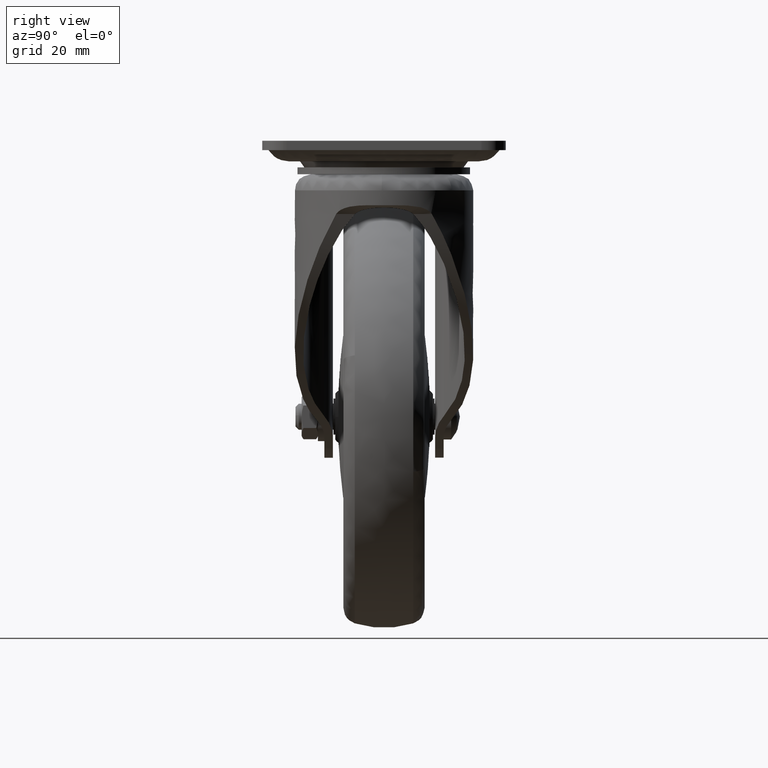
[diagram: clean part render]
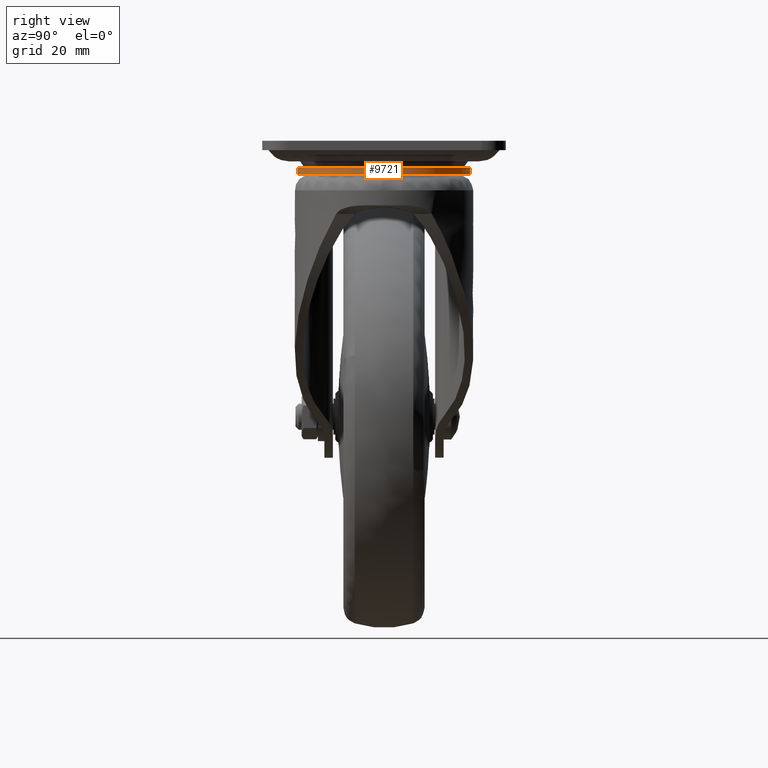
[diagram: same view with one face highlighted and labeled with its STEP entity id]
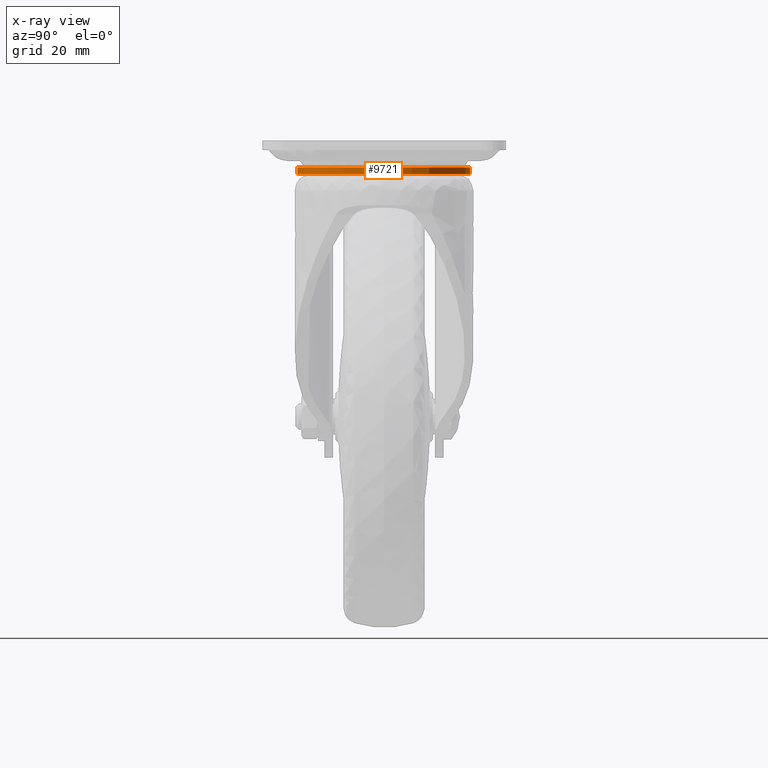
[diagram: x-ray of the same camera — body ghosted, the highlighted face saturated]
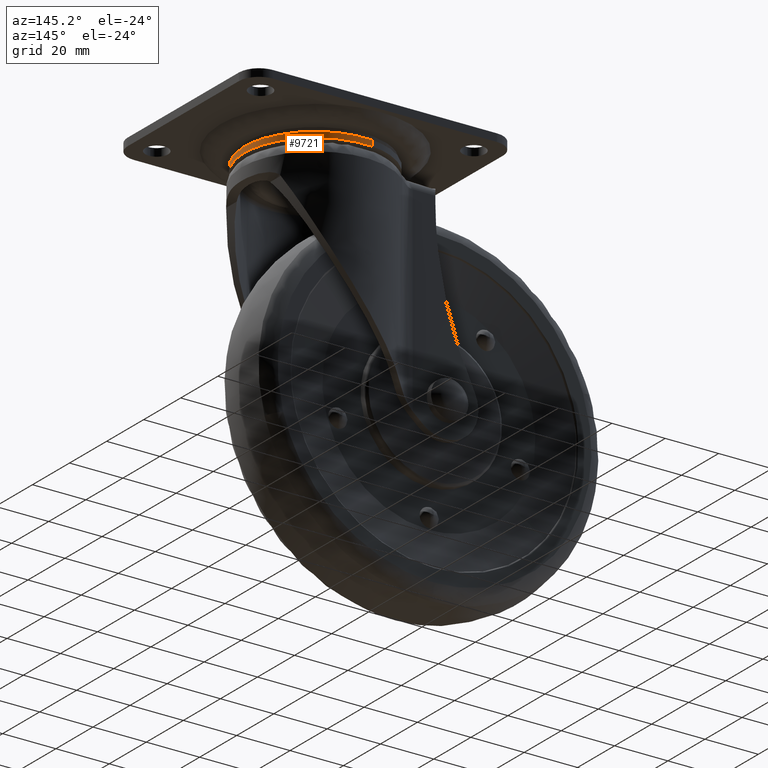
[diagram: same view with one face highlighted and labeled with its STEP entity id]
A machine part, right view. The second image highlights one B-rep face of the part: STEP entity #9721.
The next image is the same camera in x-ray: the body ghosted, the highlighted face saturated — about 0% of this face is hidden behind the body in this view.
A second angle (auxiliary view) of the same face is appended — the face is thin or edge-on in the first view.
In plain terms, the highlighted face is a freeform B-spline surface patch.
Its self-contained STEP definition (entity closure, byte-faithful):
#9615=CARTESIAN_POINT('',(-3.543126717653065,26.452807402342998,-8.155325000000000));
#9616=CARTESIAN_POINT('',(-3.345945642143184,26.476245362119506,-8.155325000000000));
#9617=CARTESIAN_POINT('',(-2.391467609905936,26.589699544623041,-8.155324999999998));
#9618=CARTESIAN_POINT('',(-1.629147430881147,26.636325044165780,-8.155324999999998));
#9619=CARTESIAN_POINT('',(25.007177613284636,28.265472475046927,-8.155324999999998));
#9620=CARTESIAN_POINT('',(26.636325044165780,1.629147430881147,-8.155324999999998));
#9621=CARTESIAN_POINT('',(28.265472475046927,-25.007177613284636,-8.155324999999998));
#9622=CARTESIAN_POINT('',(1.437585864391484,-26.648041451492414,-8.155324999999998));
#9623=CARTESIAN_POINT('',(1.247162200161756,-26.659688261735351,-8.155324999999994));
#9624=CARTESIAN_POINT('',(-3.543126717653065,26.452807402342998,-10.368991874999999));
#9625=CARTESIAN_POINT('',(-3.345945642143184,26.476245362119506,-10.368991875000001));
#9626=CARTESIAN_POINT('',(-2.391467609905936,26.589699544623041,-10.368991875000001));
#9627=CARTESIAN_POINT('',(-1.629147430881147,26.636325044165780,-10.368991875000001));
#9628=CARTESIAN_POINT('',(25.007177613284636,28.265472475046927,-10.368991875000001));
#9629=CARTESIAN_POINT('',(26.636325044165780,1.629147430881147,-10.368991875000001));
#9630=CARTESIAN_POINT('',(28.265472475046927,-25.007177613284636,-10.368991875000001));
#9631=CARTESIAN_POINT('',(1.437585864391484,-26.648041451492414,-10.368991874999997));
#9632=CARTESIAN_POINT('',(1.247162200161756,-26.659688261735351,-10.368991875000001));
#9640=(BOUNDED_SURFACE()B_SPLINE_SURFACE(2,1,((#9615,#9624),(#9616,#9625),(#9617,#9626),(#9618,#9627),(#9619,#9628),(#9620,#9629),(#9621,#9630),(#9622,#9631),(#9623,#9632)),.UNSPECIFIED.,.F.,.F.,.U.)B_SPLINE_SURFACE_WITH_KNOTS((3,1,2,2,1,3),(2,2),(0.0,0.450981317219628,2.219580444714775,46.434558632093378,90.649536819471976,91.100575870455259),(0.0,2.213666875000003),.UNSPECIFIED.)GEOMETRIC_REPRESENTATION_ITEM()RATIONAL_B_SPLINE_SURFACE(((0.972008920550601,0.972008920550601),(0.974757360672864,0.974757360672864),(0.988284271247462,0.988284271247462),(1.0,1.0),(0.707106781186548,0.707106781186548),(1.0,1.0),(0.707106781186548,0.707106781186548),(1.002987817361194,1.002987817361194),(1.005975634722388,1.005975634722388)))REPRESENTATION_ITEM('')SURFACE());
#9641=CARTESIAN_POINT('',(-3.149863185494636,26.499552734387049,-10.315000000000570));
#9642=VERTEX_POINT('',#9641);
#9643=CARTESIAN_POINT('',(26.686100000000000,0.0,-10.315000000000000));
#9644=VERTEX_POINT('',#9643);
#9645=CARTESIAN_POINT('',(-3.149863185494636,26.499552734387041,-10.315000000000573));
#9646=CARTESIAN_POINT('',(-1.580455623516007,26.686100000000003,-10.315000000000001));
#9647=CARTESIAN_POINT('',(0.0,26.686100000000000,-10.315000000000000));
#9648=CARTESIAN_POINT('',(26.686100000000007,26.686100000000007,-10.315000000000000));
#9649=CARTESIAN_POINT('',(26.686100000000000,0.0,-10.315000000000000));
#9657=(BOUNDED_CURVE()B_SPLINE_CURVE(2,(#9645,#9646,#9647,#9648,#9649),.UNSPECIFIED.,.F.,.U.)B_SPLINE_CURVE_WITH_KNOTS((3,2,3),(0.229562538592431,0.250000000000000,0.500000000000000),.UNSPECIFIED.)CURVE()GEOMETRIC_REPRESENTATION_ITEM()RATIONAL_B_SPLINE_CURVE((0.956026881741091,0.976056024575846,1.0,0.707106781186547,1.0))REPRESENTATION_ITEM(''));
#9658=EDGE_CURVE('',#9642,#9644,#9657,.T.);
#9659=ORIENTED_EDGE('',*,*,#9658,.F.);
#9660=CARTESIAN_POINT('',(-3.149863311573781,26.499552719400729,-8.208000000000000));
#9661=VERTEX_POINT('',#9660);
#9662=CARTESIAN_POINT('',(-3.149863311573781,26.499552719400729,-8.208000000000000));
#9663=CARTESIAN_POINT('',(-3.149863185494636,26.499552734387049,-10.315000000000570));
#9664=QUASI_UNIFORM_CURVE('',1,(#9662,#9663),.UNSPECIFIED.,.F.,.U.);
#9665=EDGE_CURVE('',#9661,#9642,#9664,.T.);
#9666=ORIENTED_EDGE('',*,*,#9665,.F.);
#9667=CARTESIAN_POINT('',(26.686100000000000,0.0,-8.208000000000000));
#9668=VERTEX_POINT('',#9667);
#9669=CARTESIAN_POINT('',(-3.149863311573781,26.499552719400722,-8.208000000000000));
#9670=CARTESIAN_POINT('',(-1.580455687222018,26.686100000000003,-8.207999999999998));
#9671=CARTESIAN_POINT('',(0.0,26.686100000000000,-8.208000000000000));
#9672=CARTESIAN_POINT('',(26.686100000000007,26.686100000000007,-8.208000000000002));
#9673=CARTESIAN_POINT('',(26.686100000000000,0.0,-8.208000000000000));
#9681=(BOUNDED_CURVE()B_SPLINE_CURVE(2,(#9669,#9670,#9671,#9672,#9673),.UNSPECIFIED.,.F.,.U.)B_SPLINE_CURVE_WITH_KNOTS((3,2,3),(0.229562537788350,0.250000000000000,0.500000000000000),.UNSPECIFIED.)CURVE()GEOMETRIC_REPRESENTATION_ITEM()RATIONAL_B_SPLINE_CURVE((0.956026880165058,0.976056023633806,1.0,0.707106781186547,1.0))REPRESENTATION_ITEM(''));
#9682=EDGE_CURVE('',#9661,#9668,#9681,.T.);
#9683=ORIENTED_EDGE('',*,*,#9682,.T.);
#9684=CARTESIAN_POINT('',(1.629108631131577,-26.636327417203400,-8.207999999999998));
#9685=VERTEX_POINT('',#9684);
#9686=CARTESIAN_POINT('',(26.686100000000000,0.0,-8.208000000000000));
#9687=CARTESIAN_POINT('',(26.686100000000014,-25.103812807772197,-8.208000000000000));
#9688=CARTESIAN_POINT('',(1.629108631131577,-26.636327417203393,-8.207999999999998));
#9696=(BOUNDED_CURVE()B_SPLINE_CURVE(2,(#9686,#9687,#9688),.UNSPECIFIED.,.F.,.U.)B_SPLINE_CURVE_WITH_KNOTS((3,3),(0.500000000000000,0.739333213581951),.UNSPECIFIED.)CURVE()GEOMETRIC_REPRESENTATION_ITEM()RATIONAL_B_SPLINE_CURVE((1.0,0.719603698820059,0.976072580343222))REPRESENTATION_ITEM(''));
#9697=EDGE_CURVE('',#9668,#9685,#9696,.T.);
#9698=ORIENTED_EDGE('',*,*,#9697,.T.);
#9699=CARTESIAN_POINT('',(1.629108145996714,-26.636327446874091,-10.315000000004330));
#9700=VERTEX_POINT('',#9699);
#9701=CARTESIAN_POINT('',(1.629108631131577,-26.636327417203400,-8.207999999999998));
#9702=CARTESIAN_POINT('',(1.629108145996714,-26.636327446874091,-10.315000000004330));
#9703=QUASI_UNIFORM_CURVE('',1,(#9701,#9702),.UNSPECIFIED.,.F.,.U.);
#9704=EDGE_CURVE('',#9685,#9700,#9703,.T.);
#9705=ORIENTED_EDGE('',*,*,#9704,.T.);
#9706=CARTESIAN_POINT('',(26.686100000000000,0.0,-10.315000000000000));
#9707=CARTESIAN_POINT('',(26.686100000000000,-25.103813265849265,-10.315000000000000));
#9708=CARTESIAN_POINT('',(1.629108145996714,-26.636327446874088,-10.315000000004332));
#9716=(BOUNDED_CURVE()B_SPLINE_CURVE(2,(#9706,#9707,#9708),.UNSPECIFIED.,.F.,.U.)B_SPLINE_CURVE_WITH_KNOTS((3,3),(0.500000000000000,0.739333216724596),.UNSPECIFIED.)CURVE()GEOMETRIC_REPRESENTATION_ITEM()RATIONAL_B_SPLINE_CURVE((1.0,0.719603695138222,0.976072587078522))REPRESENTATION_ITEM(''));
#9717=EDGE_CURVE('',#9644,#9700,#9716,.T.);
#9718=ORIENTED_EDGE('',*,*,#9717,.F.);
#9719=EDGE_LOOP('',(#9659,#9666,#9683,#9698,#9705,#9718));
#9720=FACE_OUTER_BOUND('',#9719,.T.);
#9721=ADVANCED_FACE('',(#9720),#9640,.T.);